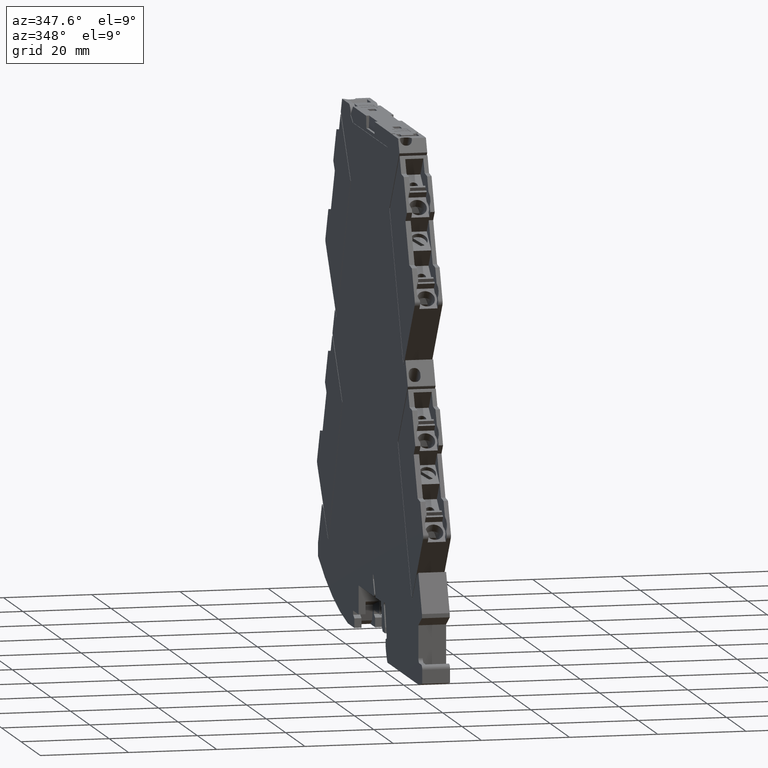
[diagram: clean part render]
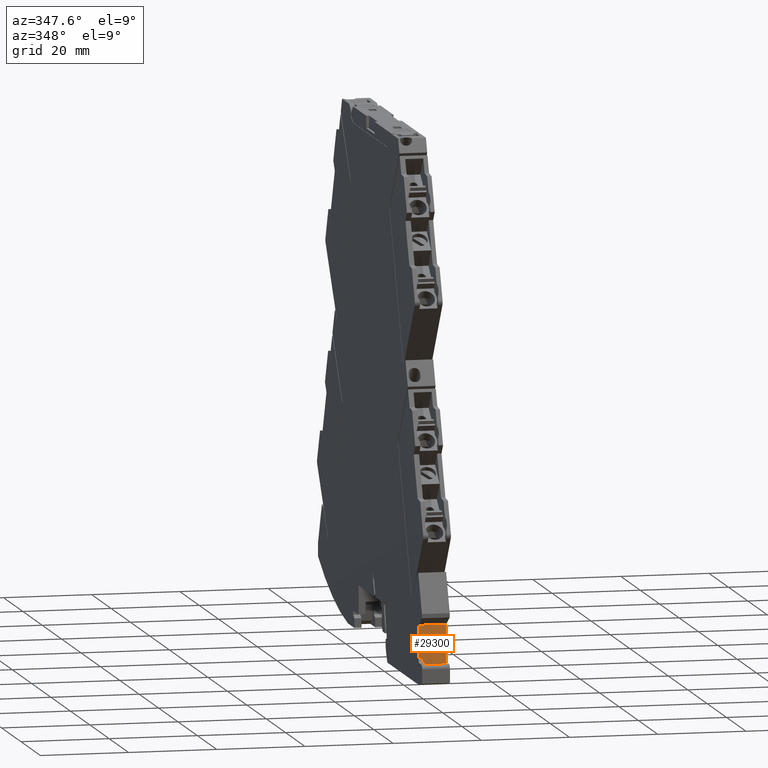
[diagram: same view with one face highlighted and labeled with its STEP entity id]
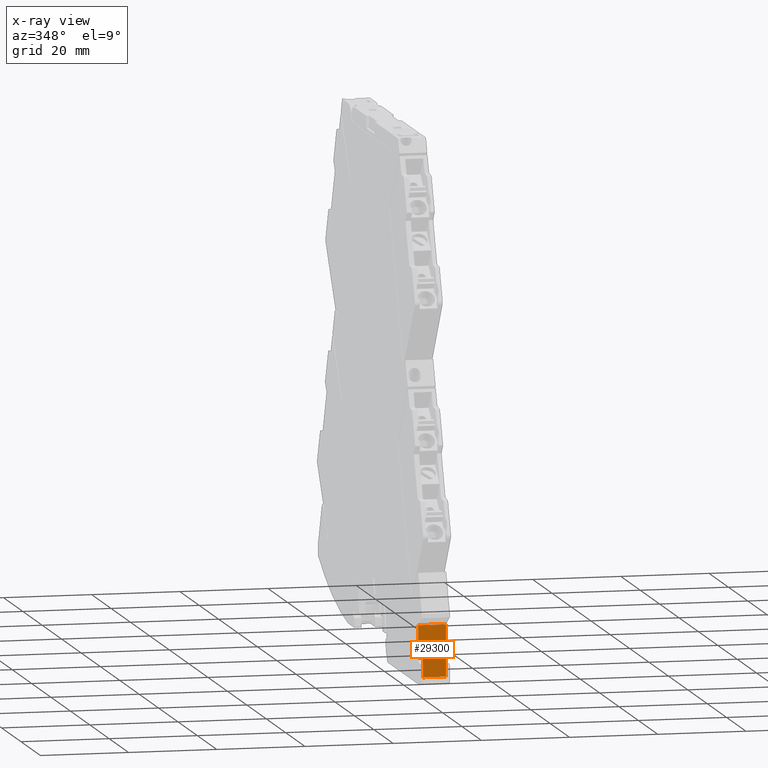
[diagram: x-ray of the same camera — body ghosted, the highlighted face saturated]
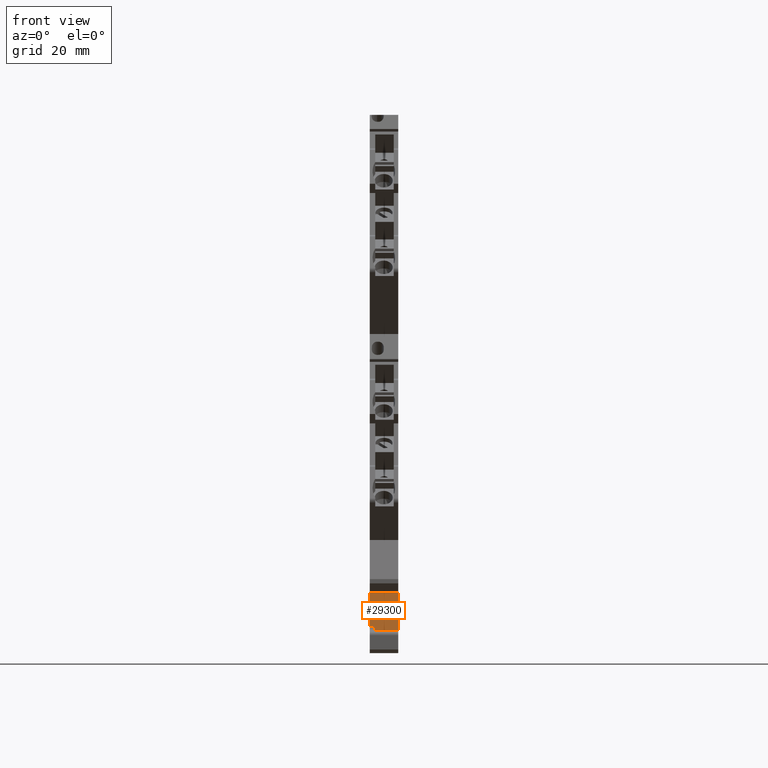
[diagram: same view with one face highlighted and labeled with its STEP entity id]
A machine part, auxiliary view. The second image highlights one B-rep face of the part: STEP entity #29300.
The next image is the same camera in x-ray: the body ghosted, the highlighted face saturated — about 0% of this face is hidden behind the body in this view.
A second angle (front view) of the same face is appended — the face is thin or edge-on in the first view.
In plain terms, the highlighted planar face has unit normal (0, 1, 0).
Its self-contained STEP definition (entity closure, byte-faithful):
#1890=CARTESIAN_POINT('',(-33.7492764080437,4.29059892324941,
-14.6999999999704));
#1900=VERTEX_POINT('',#1890);
#1930=CARTESIAN_POINT('',(-33.7492764080437,1.45442931158427E-15,
-14.6999999999704));
#1940=DIRECTION('',(-1.11022302459215E-16,1.,-4.92890469345861E-28));
#1950=VECTOR('',#1940,1.);
#1960=LINE('',#1930,#1950);
#1970=CARTESIAN_POINT('',(-33.7492764080437,-3.05673846836056,
-14.6999999999704));
#1980=VERTEX_POINT('',#1970);
#1990=EDGE_CURVE('',#1980,#1900,#1960,.T.);
#6440=CARTESIAN_POINT('',(-33.7492764080996,-7.44347826086124,
-8.40000000024328));
#6450=VERTEX_POINT('',#6440);
#6480=CARTESIAN_POINT('',(-33.7492764080996,-10.2999999999919,
-8.40000000024326));
#6490=DIRECTION('',(-1.11022302401093E-16,1.,-6.54588571843789E-15));
#6500=VECTOR('',#6490,1.);
#6510=LINE('',#6480,#6500);
#6520=CARTESIAN_POINT('',(-33.7492764080996,4.29059892324946,
-8.40000000024335));
#6530=VERTEX_POINT('',#6520);
#6540=EDGE_CURVE('',#6450,#6530,#6510,.T.);
#28480=CARTESIAN_POINT('',(-33.7492764080526,-3.05673846836055,
-13.7000000002429));
#28490=VERTEX_POINT('',#28480);
#28520=CARTESIAN_POINT('',(-33.7492764080526,-10.299999999992,
-13.7000000002428));
#28530=DIRECTION('',(1.11022302401093E-16,-1.,6.54588571843789E-15));
#28540=VECTOR('',#28530,1.);
#28550=LINE('',#28520,#28540);
#28560=CARTESIAN_POINT('',(-33.7492764080526,-7.44347826086128,
-13.7000000002428));
#28570=VERTEX_POINT('',#28560);
#28580=EDGE_CURVE('',#28490,#28570,#28550,.T.);
#28970=CARTESIAN_POINT('',(-33.7492764081751,-7.44347826086119,
0.100000000035893));
#28980=DIRECTION('',(8.87912561076062E-12,-6.5458857184369E-15,-1.));
#28990=VECTOR('',#28980,1.);
#29000=LINE('',#28970,#28990);
#29010=EDGE_CURVE('',#6450,#28570,#29000,.T.);
#29070=CARTESIAN_POINT('',(-33.7492764080996,-3.05673846836052,
-8.4000000002433));
#29080=DIRECTION('',(1.,1.11022302459215E-16,8.87912561076062E-12));
#29090=DIRECTION('',(1.11022302401093E-16,-1.,6.54588571843789E-15));
#29100=AXIS2_PLACEMENT_3D('',#29070,#29080,#29090);
#29110=PLANE('',#29100);
#29120=ORIENTED_EDGE('',*,*,#6540,.T.);
#29130=ORIENTED_EDGE('',*,*,#29010,.F.);
#29140=ORIENTED_EDGE('',*,*,#28580,.T.);
#29150=CARTESIAN_POINT('',(-33.7492764080996,-3.05673846836052,
-8.4000000002433));
#29160=DIRECTION('',(8.87912561076062E-12,-6.5458857184369E-15,-1.));
#29170=VECTOR('',#29160,1.);
#29180=LINE('',#29150,#29170);
#29190=EDGE_CURVE('',#28490,#1980,#29180,.T.);
#29200=ORIENTED_EDGE('',*,*,#29190,.F.);
#29210=ORIENTED_EDGE('',*,*,#1990,.F.);
#29220=CARTESIAN_POINT('',(-33.7492764081751,4.29059892324951,
0.100000000035893));
#29230=DIRECTION('',(8.87912561076062E-12,-6.5458857184369E-15,-1.));
#29240=VECTOR('',#29230,1.);
#29250=LINE('',#29220,#29240);
#29260=EDGE_CURVE('',#6530,#1900,#29250,.T.);
#29270=ORIENTED_EDGE('',*,*,#29260,.T.);
#29280=EDGE_LOOP('',(#29270,#29210,#29200,#29140,#29130,#29120));
#29290=FACE_OUTER_BOUND('',#29280,.T.);
#29300=ADVANCED_FACE('',(#29290),#29110,.F.);